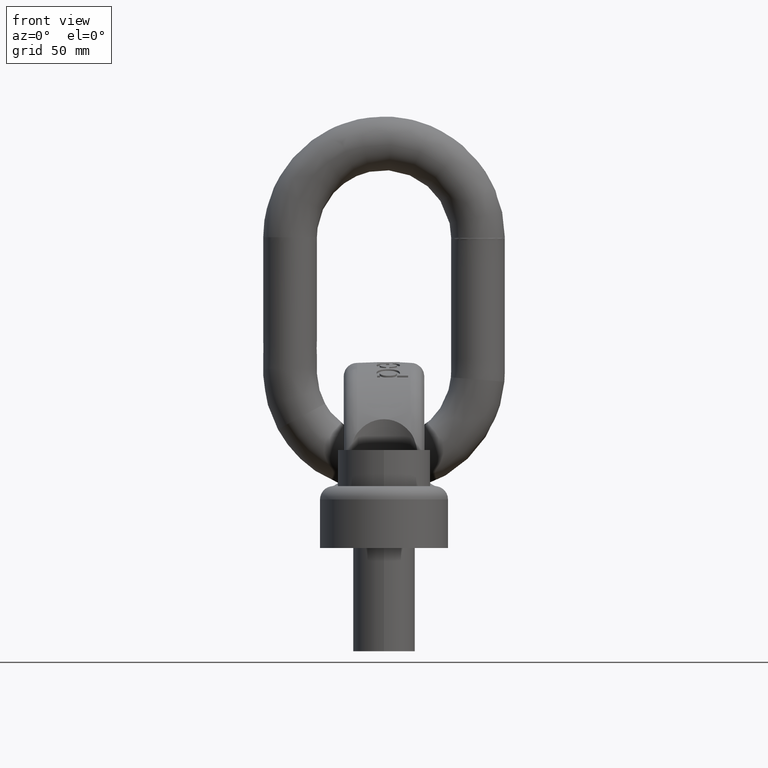
[diagram: clean part render]
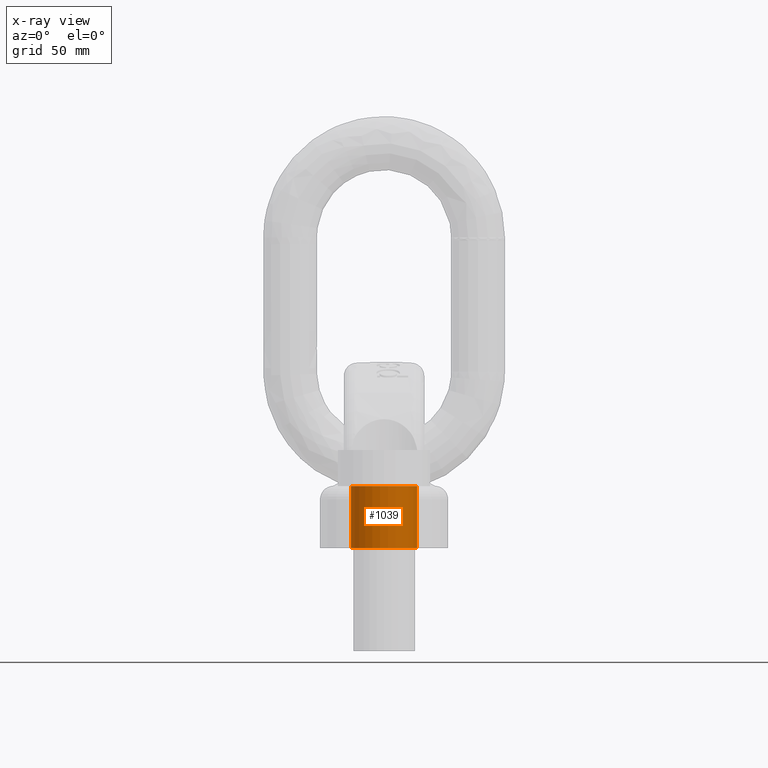
[diagram: x-ray — body ghosted, one internal face saturated and labeled with its STEP entity id]
A machine part, front view, then the same camera in x-ray: the body is ghosted and one INTERNAL B-rep face — a face not visible from any outside direction — is saturated and labeled: STEP entity #1039.
In plain terms, the highlighted cylindrical surface (bore or boss wall) has radius 16 mm, axis along (0, 0, 1).
Its self-contained STEP definition (entity closure, byte-faithful):
#1039=ADVANCED_FACE('',(#1503,#1504),#1170,.F.);
#1170=CYLINDRICAL_SURFACE('',#3650,16.);
#1503=FACE_BOUND('',#1613,.T.);
#1504=FACE_BOUND('',#1614,.T.);
#1613=EDGE_LOOP('',(#2386));
#1614=EDGE_LOOP('',(#2387));
#1986=CIRCLE('',#3582,16.);
#1990=CIRCLE('',#3587,16.);
#2386=ORIENTED_EDGE('',*,*,#3239,.F.);
#2387=ORIENTED_EDGE('',*,*,#3230,.T.);
#2956=VERTEX_POINT('',#5196);
#2963=VERTEX_POINT('',#5219);
#3230=EDGE_CURVE('',#2956,#2956,#1986,.T.);
#3239=EDGE_CURVE('',#2963,#2963,#1990,.T.);
#3582=AXIS2_PLACEMENT_3D('',#5195,#3876,#3877);
#3587=AXIS2_PLACEMENT_3D('',#5218,#3889,#3890);
#3650=AXIS2_PLACEMENT_3D('',#5875,#4032,#4033);
#3876=DIRECTION('',(0.,0.,-1.));
#3877=DIRECTION('',(1.,0.,0.));
#3889=DIRECTION('',(0.,0.,-1.));
#3890=DIRECTION('',(-1.,0.,0.));
#4032=DIRECTION('',(0.,0.,1.));
#4033=DIRECTION('',(1.,0.,0.));
#5195=CARTESIAN_POINT('',(0.,-75.,0.));
#5196=CARTESIAN_POINT('',(16.,-75.,0.));
#5218=CARTESIAN_POINT('',(0.,-75.,30.));
#5219=CARTESIAN_POINT('',(-16.,-75.,30.));
#5875=CARTESIAN_POINT('',(0.,-75.,-3.));